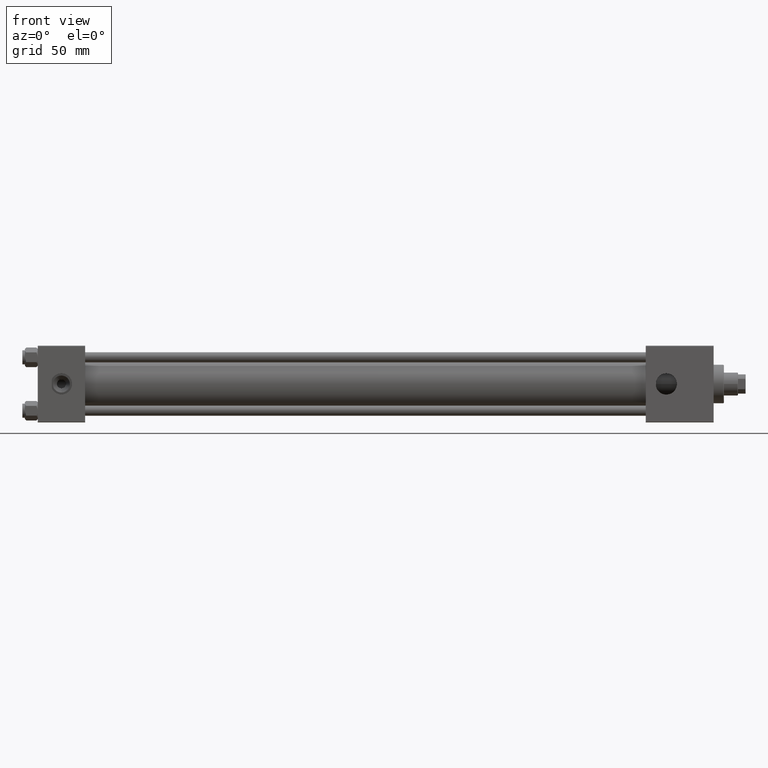
[diagram: clean part render]
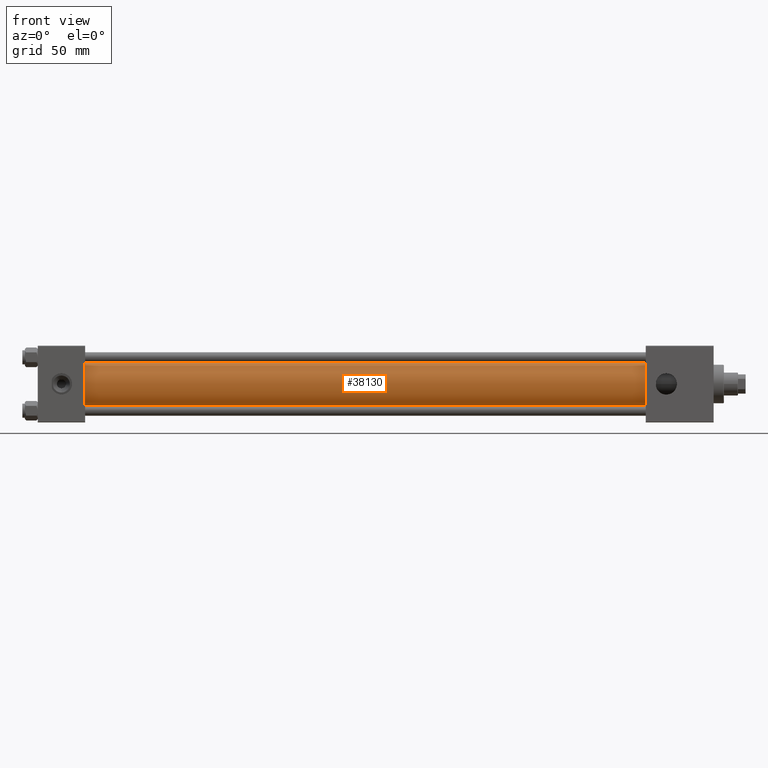
[diagram: same view with one face highlighted and labeled with its STEP entity id]
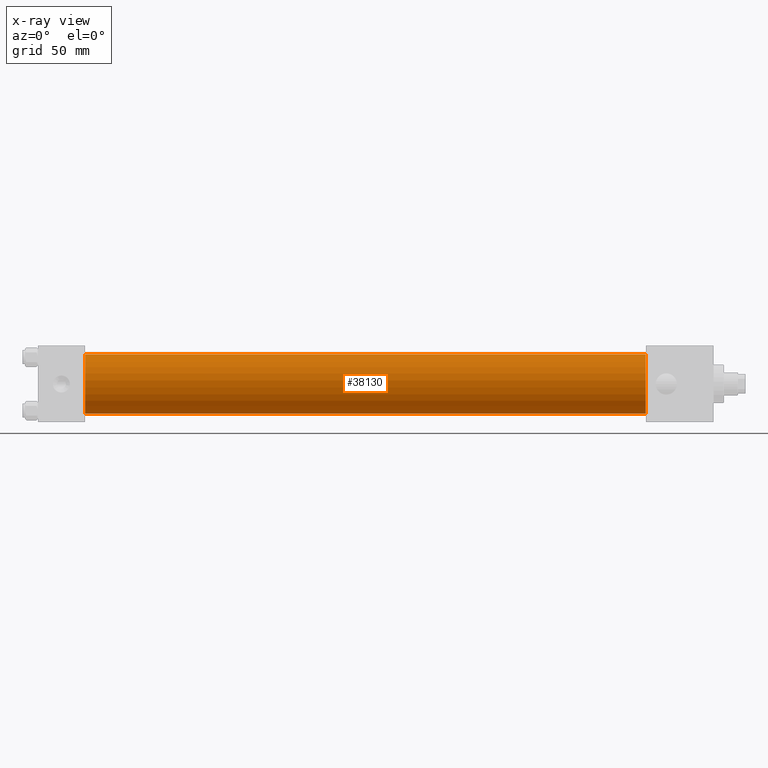
[diagram: x-ray of the same camera — body ghosted, the highlighted face saturated]
A machine part, front view. The second image highlights one B-rep face of the part: STEP entity #38130.
The next image is the same camera in x-ray: the body ghosted, the highlighted face saturated — about 0% of this face is hidden behind the body in this view.
In plain terms, the highlighted cylindrical surface (edge-blend (fillet) strip) has radius 23 mm, axis along (-1, -0, -0).
Its self-contained STEP definition (entity closure, byte-faithful):
#15 = CARTESIAN_POINT ( 'NONE',  ( 475.0000000000000000, -2.602085213965210642E-15, 23.00000000000000000 ) ) ;
#634 = DIRECTION ( 'NONE',  ( -1.000000000000000000, -0.000000000000000000, -0.000000000000000000 ) ) ;
#750 = LINE ( 'NONE', #15, #20051 ) ;
#2996 = CIRCLE ( 'NONE', #33009, 23.00000000000000000 ) ;
#3964 = CYLINDRICAL_SURFACE ( 'NONE', #29190, 23.00000000000000000 ) ;
#7371 = VERTEX_POINT ( 'NONE', #25627 ) ;
#8341 = CARTESIAN_POINT ( 'NONE',  ( 475.0000000000000000, 2.146024240737016609E-16, -23.00000000000000000 ) ) ;
#10265 = CARTESIAN_POINT ( 'NONE',  ( 36.99999999999997868, 2.146024240737016609E-16, -23.00000000000000000 ) ) ;
#12061 = DIRECTION ( 'NONE',  ( 0.000000000000000000, 0.000000000000000000, 1.000000000000000000 ) ) ;
#13111 = ORIENTED_EDGE ( 'NONE', *, *, #30649, .T. ) ;
#13625 = ORIENTED_EDGE ( 'NONE', *, *, #49178, .F. ) ;
#14034 = VECTOR ( 'NONE', #15957, 1000.000000000000000 ) ;
#15387 = DIRECTION ( 'NONE',  ( 0.000000000000000000, 0.000000000000000000, 1.000000000000000000 ) ) ;
#15869 = CARTESIAN_POINT ( 'NONE',  ( 475.0000000000000000, -2.602085213965210642E-15, 0.000000000000000000 ) ) ;
#15957 = DIRECTION ( 'NONE',  ( -1.000000000000000000, -0.000000000000000000, -0.000000000000000000 ) ) ;
#16415 = DIRECTION ( 'NONE',  ( 0.000000000000000000, 0.000000000000000000, -1.000000000000000000 ) ) ;
#17817 = EDGE_CURVE ( 'NONE', #31970, #31443, #750, .T. ) ;
#18667 = VERTEX_POINT ( 'NONE', #10265 ) ;
#20051 = VECTOR ( 'NONE', #42685, 1000.000000000000000 ) ;
#20160 = ORIENTED_EDGE ( 'NONE', *, *, #17817, .T. ) ;
#22610 = AXIS2_PLACEMENT_3D ( 'NONE', #27591, #31649, #16415 ) ;
#25627 = CARTESIAN_POINT ( 'NONE',  ( 475.0000000000000000, 2.146024240737016609E-16, -23.00000000000000000 ) ) ;
#27591 = CARTESIAN_POINT ( 'NONE',  ( 475.0000000000000000, -2.602085213965210642E-15, 0.000000000000000000 ) ) ;
#28885 = CARTESIAN_POINT ( 'NONE',  ( 36.99999999999997868, -2.602085213965210642E-15, 23.00000000000000000 ) ) ;
#29190 = AXIS2_PLACEMENT_3D ( 'NONE', #15869, #634, #12061 ) ;
#29653 = EDGE_LOOP ( 'NONE', ( #13625, #45650, #20160, #13111 ) ) ;
#30649 = EDGE_CURVE ( 'NONE', #31443, #18667, #2996, .T. ) ;
#31443 = VERTEX_POINT ( 'NONE', #28885 ) ;
#31649 = DIRECTION ( 'NONE',  ( 1.000000000000000000, 0.000000000000000000, 0.000000000000000000 ) ) ;
#31970 = VERTEX_POINT ( 'NONE', #45628 ) ;
#33009 = AXIS2_PLACEMENT_3D ( 'NONE', #38751, #50182, #15387 ) ;
#35548 = EDGE_CURVE ( 'NONE', #31970, #7371, #46967, .T. ) ;
#38130 = ADVANCED_FACE ( 'NONE', ( #46619 ), #3964, .T. ) ;
#38751 = CARTESIAN_POINT ( 'NONE',  ( 36.99999999999997868, -2.602085213965210642E-15, 0.000000000000000000 ) ) ;
#42685 = DIRECTION ( 'NONE',  ( -1.000000000000000000, -0.000000000000000000, -0.000000000000000000 ) ) ;
#45628 = CARTESIAN_POINT ( 'NONE',  ( 475.0000000000000000, -2.602085213965210642E-15, 23.00000000000000000 ) ) ;
#45650 = ORIENTED_EDGE ( 'NONE', *, *, #35548, .F. ) ;
#46619 = FACE_OUTER_BOUND ( 'NONE', #29653, .T. ) ;
#46950 = LINE ( 'NONE', #8341, #14034 ) ;
#46967 = CIRCLE ( 'NONE', #22610, 23.00000000000000000 ) ;
#49178 = EDGE_CURVE ( 'NONE', #7371, #18667, #46950, .T. ) ;
#50182 = DIRECTION ( 'NONE',  ( 1.000000000000000000, -0.000000000000000000, 0.000000000000000000 ) ) ;